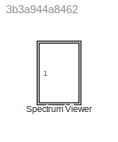
MODEL slx_3b3a944a8462
KIND model
CONFIG AbsTol = auto
CONFIG EnableMultiTasking = off
CONFIG FixedStep = auto
CONFIG MaxStep = auto
CONFIG MinStep = auto
CONFIG RelTol = 1e-3
CONFIG SampleTimeConstraint = Unconstrained
CONFIG Solver = VariableStepAuto
CONFIG SolverName = VariableStepAuto
CONFIG StartTime = 0.0
CONFIG StopTime = 10.0
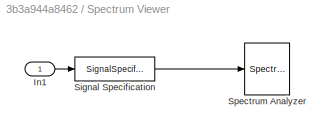
BLOCK [SubSystem] Spectrum Viewer
  Ports = [1]
  RequestExecContextInheritance = off
BLOCK [Inport] Spectrum Viewer/In1
  IconDisplay = Port number
BLOCK [SignalSpecification] Spectrum Viewer/Signal Specification
  SampleTime = 1e-6
BLOCK [SpectrumAnalyzer] Spectrum Viewer/Spectrum Analyzer
  Ports = [1]
  ScopeSpecificationString = spbscopes.SpectrumAnalyzerBlockCfg('CurrentConfiguration', extmgr.ConfigurationSet(extmgr.Configuration('Core','General UI',true),extmgr.Configuration('Core','Source UI',true),extmgr.Configuration('Sources','WiredSimulink',true),extmgr.Configuration('Visuals','Spectrum',true,'AxesProperties',struct('Color',{[0 0 0],[0 0 0]},'XColor',{[0.686274509803922 0.686274509803922 0.686274509803922],[0.68627...<+2823ch>
LINE Spectrum Viewer/In1:1 -> Spectrum Viewer/Signal Specification:1
LINE Spectrum Viewer/Signal Specification:1 -> Spectrum Viewer/Spectrum Analyzer:1
